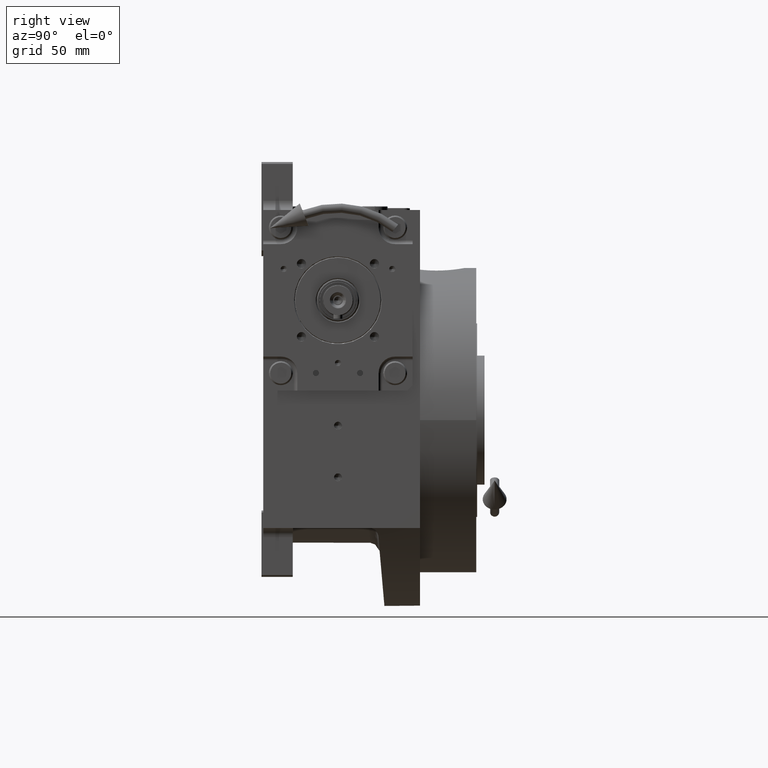
[diagram: clean part render]
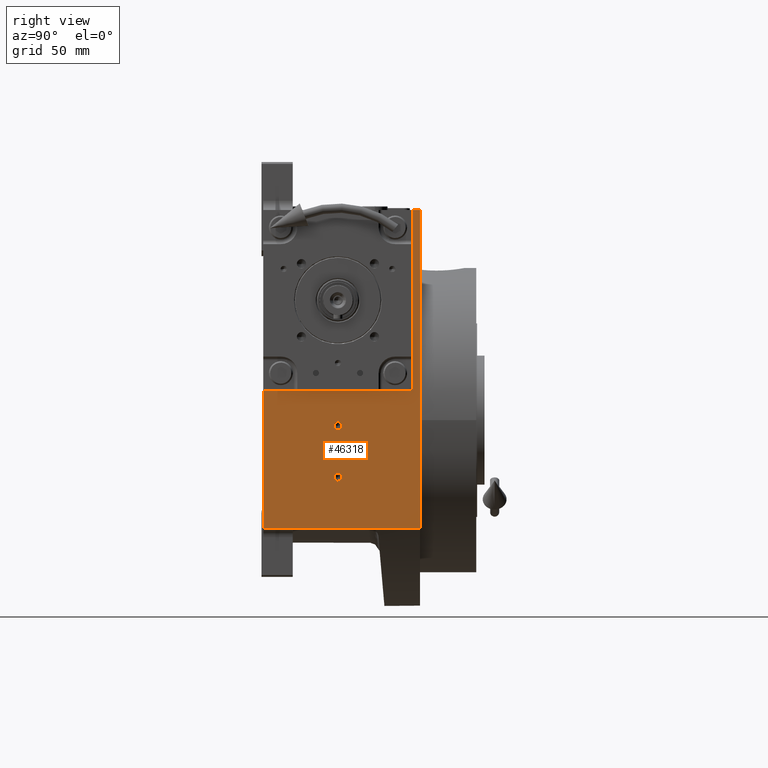
[diagram: same view with one face highlighted and labeled with its STEP entity id]
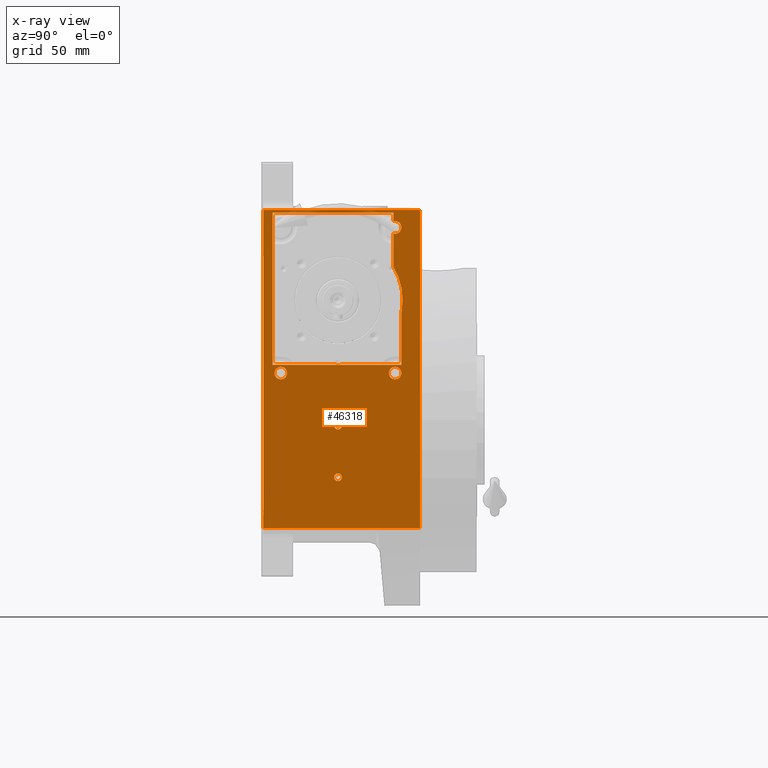
[diagram: x-ray of the same camera — body ghosted, the highlighted face saturated]
A machine part, right view. The second image highlights one B-rep face of the part: STEP entity #46318.
The next image is the same camera in x-ray: the body ghosted, the highlighted face saturated — about 1% of this face is hidden behind the body in this view.
In plain terms, the highlighted planar face has unit normal (1, 0, -0).
Its self-contained STEP definition (entity closure, byte-faithful):
#173 = CARTESIAN_POINT ( 'NONE',  ( 82.49999999999998579, -40.49999999999999289, 29.99999999999998579 ) ) ;
#615 = DIRECTION ( 'NONE',  ( 0.000000000000000000, -1.000000000000000000, 0.000000000000000000 ) ) ;
#699 = CARTESIAN_POINT ( 'NONE',  ( 82.49999999999998579, 34.89175272516990844, 60.68897464567918831 ) ) ;
#1082 = VERTEX_POINT ( 'NONE', #22754 ) ;
#1277 = DIRECTION ( 'NONE',  ( 0.000000000000000000, 1.000000000000000000, 0.000000000000000000 ) ) ;
#1816 = CIRCLE ( 'NONE', #15249, 2.100000000000000089 ) ;
#1893 = DIRECTION ( 'NONE',  ( 1.000000000000000000, 0.000000000000000000, 0.000000000000000000 ) ) ;
#2348 = CARTESIAN_POINT ( 'NONE',  ( 82.49999999999998579, -1.693757624165966202, 29.93853691575077747 ) ) ;
#2807 = VERTEX_POINT ( 'NONE', #47580 ) ;
#2872 = EDGE_CURVE ( 'NONE', #32560, #29061, #53044, .T. ) ;
#3232 = CARTESIAN_POINT ( 'NONE',  ( 82.50000000000001421, 30.82805572436245711, 81.84190272524516274 ) ) ;
#3255 = CARTESIAN_POINT ( 'NONE',  ( 82.50000000000000000, 2.536110083989804753, 29.99974484571772138 ) ) ;
#3318 = CARTESIAN_POINT ( 'NONE',  ( 82.50000000000000000, 0.000000000000000000, -31.00000000000000000 ) ) ;
#3762 = VECTOR ( 'NONE', #38104, 1000.000000000000000 ) ;
#4372 = LINE ( 'NONE', #173, #62797 ) ;
#4382 = AXIS2_PLACEMENT_3D ( 'NONE', #28216, #43418, #38249 ) ;
#4471 = AXIS2_PLACEMENT_3D ( 'NONE', #34215, #29995, #9939 ) ;
#4578 = CARTESIAN_POINT ( 'NONE',  ( 82.50000000000000000, 30.00000000000593303, 113.9999999997145892 ) ) ;
#4647 = CARTESIAN_POINT ( 'NONE',  ( 82.50000000000000000, -40.50000000000000000, 114.0000000000000000 ) ) ;
#4983 = DIRECTION ( 'NONE',  ( 0.000000000000000000, 1.000000000000000000, 0.000000000000000000 ) ) ;
#5145 = CARTESIAN_POINT ( 'NONE',  ( 82.50000000000000000, -31.00000000000000000, 25.50000000000000000 ) ) ;
#5308 = DIRECTION ( 'NONE',  ( 1.000000000000000000, 0.000000000000000000, 0.000000000000000000 ) ) ;
#5886 = AXIS2_PLACEMENT_3D ( 'NONE', #46210, #1893, #56190 ) ;
#6140 = CARTESIAN_POINT ( 'NONE',  ( 82.50000000000000000, 2.220446049250315053E-16, -31.00000000000000000 ) ) ;
#6272 = ORIENTED_EDGE ( 'NONE', *, *, #17821, .F. ) ;
#6343 = VERTEX_POINT ( 'NONE', #17771 ) ;
#6751 = CARTESIAN_POINT ( 'NONE',  ( 82.50000000000000000, -35.50000000000001421, 114.0000000000000000 ) ) ;
#6774 = EDGE_LOOP ( 'NONE', ( #26837, #43903, #29459, #21782, #14669, #43031, #28745, #9667, #26773, #7821, #60454, #14006, #26745 ) ) ;
#6844 = VERTEX_POINT ( 'NONE', #10814 ) ;
#6894 = CARTESIAN_POINT ( 'NONE',  ( 82.50000000000000000, -2.536110689832524745, 29.99973653616786606 ) ) ;
#7238 = ORIENTED_EDGE ( 'NONE', *, *, #16434, .F. ) ;
#7327 = EDGE_CURVE ( 'NONE', #11759, #6844, #22421, .T. ) ;
#7445 = CARTESIAN_POINT ( 'NONE',  ( 82.49999999999998579, 34.64993789476057628, 70.56380189656638890 ) ) ;
#7821 = ORIENTED_EDGE ( 'NONE', *, *, #19068, .T. ) ;
#8585 = EDGE_LOOP ( 'NONE', ( #49269, #18398 ) ) ;
#8593 = EDGE_CURVE ( 'NONE', #38062, #60233, #21510, .T. ) ;
#8710 = CARTESIAN_POINT ( 'NONE',  ( 82.50000000000000000, 32.51283170918762977, 78.22893766805258053 ) ) ;
#8735 = CARTESIAN_POINT ( 'NONE',  ( 82.50000000000000000, 34.49999999999999289, 114.0000000000000000 ) ) ;
#9339 = VERTEX_POINT ( 'NONE', #38024 ) ;
#9667 = ORIENTED_EDGE ( 'NONE', *, *, #28842, .T. ) ;
#9939 = DIRECTION ( 'NONE',  ( -1.647635329298784785E-16, 0.000000000000000000, -1.000000000000000000 ) ) ;
#10139 = AXIS2_PLACEMENT_3D ( 'NONE', #25194, #25862, #615 ) ;
#10274 = FACE_BOUND ( 'NONE', #6774, .T. ) ;
#10437 = VERTEX_POINT ( 'NONE', #60699 ) ;
#10440 = VERTEX_POINT ( 'NONE', #26754 ) ;
#10814 = CARTESIAN_POINT ( 'NONE',  ( 82.50000000000000000, 27.59999999999999787, 25.50000000000000000 ) ) ;
#10944 = CIRCLE ( 'NONE', #43044, 2.100000000000000089 ) ;
#11759 = VERTEX_POINT ( 'NONE', #13286 ) ;
#12309 = CARTESIAN_POINT ( 'NONE',  ( 82.50001592702780329, 35.09186693526755363, 65.00000042374568920 ) ) ;
#12361 = EDGE_CURVE ( 'NONE', #30007, #25662, #33553, .T. ) ;
#12681 = EDGE_CURVE ( 'NONE', #10440, #60532, #37380, .T. ) ;
#13178 = CARTESIAN_POINT ( 'NONE',  ( 82.50000000000000000, 0.000000000000000000, -3.000000000000000000 ) ) ;
#13272 = CARTESIAN_POINT ( 'NONE',  ( 82.49999999999998579, 34.44127179831260577, 71.73571205950983654 ) ) ;
#13286 = CARTESIAN_POINT ( 'NONE',  ( 82.50000000000000000, 34.39999999999999858, 25.50000000000000000 ) ) ;
#13300 = DIRECTION ( 'NONE',  ( -1.647635329298784785E-16, 0.000000000000000000, -1.000000000000000000 ) ) ;
#13638 = CARTESIAN_POINT ( 'NONE',  ( 82.50000000000000000, -40.50000000000000000, 112.4999999999999005 ) ) ;
#13687 = VERTEX_POINT ( 'NONE', #15464 ) ;
#13836 = EDGE_LOOP ( 'NONE', ( #52426, #7238, #25909, #38735, #17381 ) ) ;
#14006 = ORIENTED_EDGE ( 'NONE', *, *, #18243, .T. ) ;
#14343 = CARTESIAN_POINT ( 'NONE',  ( 82.50000000000000000, 29.99999999998061995, 107.7496153618484129 ) ) ;
#14490 = FACE_OUTER_BOUND ( 'NONE', #13836, .T. ) ;
#14669 = ORIENTED_EDGE ( 'NONE', *, *, #40209, .T. ) ;
#15115 = DIRECTION ( 'NONE',  ( 0.000000000000000000, 1.000000000000000000, 4.081702296416015997E-15 ) ) ;
#15249 = AXIS2_PLACEMENT_3D ( 'NONE', #58696, #5308, #53819 ) ;
#15278 = CARTESIAN_POINT ( 'NONE',  ( 82.50000000000000000, 2.536110083989804753, 29.99974484571772138 ) ) ;
#15464 = CARTESIAN_POINT ( 'NONE',  ( 82.49999999999998579, 30.00000000960658042, 83.20547276137477866 ) ) ;
#15881 = EDGE_CURVE ( 'NONE', #47292, #60532, #38082, .T. ) ;
#16434 = EDGE_CURVE ( 'NONE', #30007, #47292, #33456, .T. ) ;
#17381 = ORIENTED_EDGE ( 'NONE', *, *, #12681, .T. ) ;
#17513 = AXIS2_PLACEMENT_3D ( 'NONE', #60811, #41716, #37504 ) ;
#17771 = CARTESIAN_POINT ( 'NONE',  ( 82.50000000000000000, -2.536110689832524745, 29.99973653616786606 ) ) ;
#17821 = EDGE_CURVE ( 'NONE', #31398, #22965, #1816, .T. ) ;
#18243 = EDGE_CURVE ( 'NONE', #2807, #31524, #18549, .T. ) ;
#18303 = VECTOR ( 'NONE', #58586, 1000.000000000000000 ) ;
#18398 = ORIENTED_EDGE ( 'NONE', *, *, #45227, .F. ) ;
#18450 = EDGE_CURVE ( 'NONE', #28758, #1082, #31462, .T. ) ;
#18530 = DIRECTION ( 'NONE',  ( 0.000000000000000000, -1.000000000000000000, -9.912705577010326782E-17 ) ) ;
#18549 = LINE ( 'NONE', #4578, #49321 ) ;
#18889 = EDGE_CURVE ( 'NONE', #31528, #9339, #53556, .T. ) ;
#19068 = EDGE_CURVE ( 'NONE', #37723, #21765, #32610, .T. ) ;
#19128 = EDGE_CURVE ( 'NONE', #60233, #31524, #32895, .T. ) ;
#19683 = AXIS2_PLACEMENT_3D ( 'NONE', #3318, #62488, #47337 ) ;
#20084 = EDGE_CURVE ( 'NONE', #54500, #10437, #54653, .T. ) ;
#20918 = VECTOR ( 'NONE', #22891, 1000.000000000000000 ) ;
#21510 = CIRCLE ( 'NONE', #10139, 3.400000000000000355 ) ;
#21693 = LINE ( 'NONE', #31365, #31209 ) ;
#21765 = VERTEX_POINT ( 'NONE', #61679 ) ;
#21782 = ORIENTED_EDGE ( 'NONE', *, *, #18450, .T. ) ;
#21895 = EDGE_CURVE ( 'NONE', #22965, #31398, #10944, .T. ) ;
#22109 = CIRCLE ( 'NONE', #28285, 3.400000000000000355 ) ;
#22119 = ORIENTED_EDGE ( 'NONE', *, *, #37114, .F. ) ;
#22421 = CIRCLE ( 'NONE', #5886, 3.400000000000000355 ) ;
#22754 = CARTESIAN_POINT ( 'NONE',  ( 82.50000000000000000, 34.49999998686116243, 58.58312853369196205 ) ) ;
#22879 = EDGE_CURVE ( 'NONE', #6343, #37723, #62804, .T. ) ;
#22891 = DIRECTION ( 'NONE',  ( -1.647635329298784785E-16, 0.000000000000000000, -1.000000000000000000 ) ) ;
#22965 = VERTEX_POINT ( 'NONE', #54672 ) ;
#23186 = EDGE_CURVE ( 'NONE', #13687, #28758, #43431, .T. ) ;
#23984 = LINE ( 'NONE', #13638, #18303 ) ;
#24311 = DIRECTION ( 'NONE',  ( -1.647635329298784785E-16, -4.048429820936533247E-12, -1.000000000000000000 ) ) ;
#25194 = CARTESIAN_POINT ( 'NONE',  ( 82.50000000000000000, 31.00000000000000000, 104.5000000000000000 ) ) ;
#25558 = VECTOR ( 'NONE', #18530, 1000.000000000000000 ) ;
#25646 = CARTESIAN_POINT ( 'NONE',  ( 82.50000000000000000, -40.50000000000000000, -58.50000000000000000 ) ) ;
#25662 = VERTEX_POINT ( 'NONE', #25646 ) ;
#25694 = CARTESIAN_POINT ( 'NONE',  ( 82.50001592702780329, 35.09186693526755363, 65.00000042374568920 ) ) ;
#25862 = DIRECTION ( 'NONE',  ( 1.000000000000000000, 0.000000000000000000, 0.000000000000000000 ) ) ;
#25874 = DIRECTION ( 'NONE',  ( 1.000000000000000000, 0.000000000000000000, 0.000000000000000000 ) ) ;
#25909 = ORIENTED_EDGE ( 'NONE', *, *, #12361, .T. ) ;
#26727 = DIRECTION ( 'NONE',  ( -1.647635329298784785E-16, -4.048429820936533247E-12, -1.000000000000000000 ) ) ;
#26745 = ORIENTED_EDGE ( 'NONE', *, *, #19128, .F. ) ;
#26754 = CARTESIAN_POINT ( 'NONE',  ( 82.50000025238179546, 16.91834884610074852, -58.49999999999619860 ) ) ;
#26773 = ORIENTED_EDGE ( 'NONE', *, *, #22879, .T. ) ;
#26837 = ORIENTED_EDGE ( 'NONE', *, *, #8593, .F. ) ;
#27472 = VECTOR ( 'NONE', #26727, 1000.000000000000000 ) ;
#27521 = CARTESIAN_POINT ( 'NONE',  ( 82.50000000000001421, 2.414562605747844383E-09, 29.90816376169637891 ) ) ;
#27645 = EDGE_LOOP ( 'NONE', ( #63902, #49207 ) ) ;
#27824 = CARTESIAN_POINT ( 'NONE',  ( 82.49999999999997158, 35.08975786824625231, 66.61097725807486825 ) ) ;
#28185 = VECTOR ( 'NONE', #4983, 1000.000000000000000 ) ;
#28216 = CARTESIAN_POINT ( 'NONE',  ( 82.50000000000000000, 31.00000000000000000, 25.50000000000000000 ) ) ;
#28285 = AXIS2_PLACEMENT_3D ( 'NONE', #5145, #40075, #55235 ) ;
#28436 = CARTESIAN_POINT ( 'NONE',  ( 82.50000000000001421, 32.80572029892041996, 77.48516808457488025 ) ) ;
#28505 = CARTESIAN_POINT ( 'NONE',  ( 82.49999999999998579, 34.49999999999999289, 30.00000000000000000 ) ) ;
#28745 = ORIENTED_EDGE ( 'NONE', *, *, #2872, .T. ) ;
#28758 = VERTEX_POINT ( 'NONE', #25694 ) ;
#28762 = B_SPLINE_CURVE_WITH_KNOTS ( 'NONE', 3,
 ( #46678, #52131, #2348, #6894 ),
 .UNSPECIFIED., .F., .F.,
 ( 4, 4 ),
 ( 0.5000001611269361268, 0.5230119329669968842 ),
 .UNSPECIFIED. ) ;
#28842 = EDGE_CURVE ( 'NONE', #29061, #6343, #28762, .T. ) ;
#29061 = VERTEX_POINT ( 'NONE', #54294 ) ;
#29179 = CIRCLE ( 'NONE', #4382, 3.400000000000000355 ) ;
#29459 = ORIENTED_EDGE ( 'NONE', *, *, #23186, .T. ) ;
#29995 = DIRECTION ( 'NONE',  ( 1.000000000000000000, 0.000000000000000000, -1.647635329298784785E-16 ) ) ;
#30007 = VERTEX_POINT ( 'NONE', #59978 ) ;
#31209 = VECTOR ( 'NONE', #41394, 1000.000000000000000 ) ;
#31365 = CARTESIAN_POINT ( 'NONE',  ( 82.50000000000000000, -40.50000000000000000, -58.50000000000000000 ) ) ;
#31398 = VERTEX_POINT ( 'NONE', #33111 ) ;
#31462 = B_SPLINE_CURVE_WITH_KNOTS ( 'NONE', 3,
 ( #41119, #39821, #699, #34990 ),
 .UNSPECIFIED., .F., .F.,
 ( 4, 4 ),
 ( 0.000000000000000000, 0.05853918765828202558 ),
 .UNSPECIFIED. ) ;
#31524 = VERTEX_POINT ( 'NONE', #14343 ) ;
#31528 = VERTEX_POINT ( 'NONE', #53448 ) ;
#31559 = CARTESIAN_POINT ( 'NONE',  ( 82.49999999999998579, -35.50000000000001421, 29.99999999999999289 ) ) ;
#32560 = VERTEX_POINT ( 'NONE', #15278 ) ;
#32610 = LINE ( 'NONE', #6751, #60772 ) ;
#32662 = CARTESIAN_POINT ( 'NONE',  ( 82.49999999999998579, 30.00000000960658042, 83.20547276137477866 ) ) ;
#32895 = CIRCLE ( 'NONE', #38058, 3.400000000000000355 ) ;
#33111 = CARTESIAN_POINT ( 'NONE',  ( 82.50000000000000000, 2.100000000000000089, -3.000000000000000000 ) ) ;
#33456 = LINE ( 'NONE', #4647, #28185 ) ;
#33525 = DIRECTION ( 'NONE',  ( 0.000000000000000000, -1.000000000000000000, -8.260587980841937794E-16 ) ) ;
#33553 = LINE ( 'NONE', #38708, #3762 ) ;
#34215 = CARTESIAN_POINT ( 'NONE',  ( 82.50000000000000000, -40.50000000000000000, 114.0000000000000000 ) ) ;
#34520 = DIRECTION ( 'NONE',  ( 1.000000000000000000, 0.000000000000000000, 0.000000000000000000 ) ) ;
#34990 = CARTESIAN_POINT ( 'NONE',  ( 82.50000000000000000, 34.49999998686116243, 58.58312853369196205 ) ) ;
#35496 = EDGE_CURVE ( 'NONE', #25662, #10440, #21693, .T. ) ;
#36590 = ORIENTED_EDGE ( 'NONE', *, *, #20084, .F. ) ;
#36592 = CARTESIAN_POINT ( 'NONE',  ( 82.50000000000000000, -34.39999999999999858, 25.50000000000000000 ) ) ;
#36869 = CARTESIAN_POINT ( 'NONE',  ( 82.50000000000001421, 33.33865609199173718, 75.98322085332500819 ) ) ;
#37114 = EDGE_CURVE ( 'NONE', #10437, #54500, #22109, .T. ) ;
#37380 = LINE ( 'NONE', #51614, #61654 ) ;
#37504 = DIRECTION ( 'NONE',  ( 0.000000000000000000, -1.000000000000000000, 2.040851148208007998E-15 ) ) ;
#37723 = VERTEX_POINT ( 'NONE', #31559 ) ;
#38024 = CARTESIAN_POINT ( 'NONE',  ( 82.50000000000000000, -2.100000000000000089, -31.00000000000000000 ) ) ;
#38058 = AXIS2_PLACEMENT_3D ( 'NONE', #54230, #34520, #15115 ) ;
#38062 = VERTEX_POINT ( 'NONE', #53818 ) ;
#38082 = LINE ( 'NONE', #43255, #20918 ) ;
#38104 = DIRECTION ( 'NONE',  ( -1.647635329298784785E-16, 0.000000000000000000, -1.000000000000000000 ) ) ;
#38249 = DIRECTION ( 'NONE',  ( 0.000000000000000000, -1.000000000000000000, 0.000000000000000000 ) ) ;
#38708 = CARTESIAN_POINT ( 'NONE',  ( 82.50000000000000000, -40.50000000000000000, 114.0000000000000000 ) ) ;
#38735 = ORIENTED_EDGE ( 'NONE', *, *, #35496, .T. ) ;
#39367 = FACE_BOUND ( 'NONE', #45804, .T. ) ;
#39821 = CARTESIAN_POINT ( 'NONE',  ( 82.49999999999998579, 35.08908208338716861, 62.82792700497097371 ) ) ;
#40017 = FACE_BOUND ( 'NONE', #27645, .T. ) ;
#40075 = DIRECTION ( 'NONE',  ( 1.000000000000000000, 0.000000000000000000, 0.000000000000000000 ) ) ;
#40209 = EDGE_CURVE ( 'NONE', #1082, #48643, #43359, .T. ) ;
#40318 = CARTESIAN_POINT ( 'NONE',  ( 82.50000000000000000, 30.00000000000593303, 113.9999999997145892 ) ) ;
#40883 = CARTESIAN_POINT ( 'NONE',  ( 82.50000000000000000, 34.39999999999999858, 104.5000000000000000 ) ) ;
#41119 = CARTESIAN_POINT ( 'NONE',  ( 82.50001592702780329, 35.09186693526755363, 65.00000042374568920 ) ) ;
#41149 = AXIS2_PLACEMENT_3D ( 'NONE', #6140, #25874, #1277 ) ;
#41394 = DIRECTION ( 'NONE',  ( 0.000000000000000000, 1.000000000000000000, 0.000000000000000000 ) ) ;
#41716 = DIRECTION ( 'NONE',  ( 1.000000000000000000, 0.000000000000000000, 0.000000000000000000 ) ) ;
#43031 = ORIENTED_EDGE ( 'NONE', *, *, #61425, .T. ) ;
#43044 = AXIS2_PLACEMENT_3D ( 'NONE', #13178, #58752, #33525 ) ;
#43255 = CARTESIAN_POINT ( 'NONE',  ( 82.50000000000000000, 44.50000000000000000, 114.0000000000000000 ) ) ;
#43359 = LINE ( 'NONE', #8735, #49301 ) ;
#43418 = DIRECTION ( 'NONE',  ( 1.000000000000000000, 0.000000000000000000, 0.000000000000000000 ) ) ;
#43431 = B_SPLINE_CURVE_WITH_KNOTS ( 'NONE', 3,
 ( #32662, #3232, #62723, #8710, #28436, #36869, #57555, #52379, #13272, #56598, #7445, #51739, #27824, #12309 ),
 .UNSPECIFIED., .F., .F.,
 ( 4, 2, 2, 1, 2, 2, 1, 4 ),
 ( 0.8263553266775865991, 0.8697664950081898105, 0.8914720791734912497, 0.9131776633387927999, 0.9348832475040943502, 0.9457360395867453473, 0.9565888316693962334, 1.000000000000000000 ),
 .UNSPECIFIED. ) ;
#43903 = ORIENTED_EDGE ( 'NONE', *, *, #51001, .T. ) ;
#44951 = CARTESIAN_POINT ( 'NONE',  ( 82.50000000000000000, 44.50000000000000000, 114.0000000000000000 ) ) ;
#45227 = EDGE_CURVE ( 'NONE', #9339, #31528, #48588, .T. ) ;
#45445 = EDGE_CURVE ( 'NONE', #6844, #11759, #29179, .T. ) ;
#45804 = EDGE_LOOP ( 'NONE', ( #6272, #59432 ) ) ;
#46210 = CARTESIAN_POINT ( 'NONE',  ( 82.50000000000000000, 31.00000000000000000, 25.50000000000000000 ) ) ;
#46318 = ADVANCED_FACE ( 'NONE', ( #59755, #39367, #49074, #40017, #14490, #10274 ), #53915, .T. ) ;
#46678 = CARTESIAN_POINT ( 'NONE',  ( 82.50000000000001421, 2.414562605747844383E-09, 29.90816376169637891 ) ) ;
#46794 = EDGE_LOOP ( 'NONE', ( #22119, #36590 ) ) ;
#47292 = VERTEX_POINT ( 'NONE', #44951 ) ;
#47337 = DIRECTION ( 'NONE',  ( 0.000000000000000000, -1.000000000000000000, 0.000000000000000000 ) ) ;
#47580 = CARTESIAN_POINT ( 'NONE',  ( 82.50000000000000000, 29.99999999999985079, 112.4999999999999005 ) ) ;
#48588 = CIRCLE ( 'NONE', #19683, 2.100000000000000089 ) ;
#48643 = VERTEX_POINT ( 'NONE', #50199 ) ;
#49011 = DIRECTION ( 'NONE',  ( -1.633252391761930827E-32, -1.000000000000000000, -9.912705577010326782E-17 ) ) ;
#49074 = FACE_BOUND ( 'NONE', #46794, .T. ) ;
#49207 = ORIENTED_EDGE ( 'NONE', *, *, #45445, .F. ) ;
#49269 = ORIENTED_EDGE ( 'NONE', *, *, #18889, .F. ) ;
#49301 = VECTOR ( 'NONE', #13300, 1000.000000000000000 ) ;
#49321 = VECTOR ( 'NONE', #24311, 1000.000000000000000 ) ;
#50199 = CARTESIAN_POINT ( 'NONE',  ( 82.49999999999998579, 34.49999999999999289, 30.00000000000000000 ) ) ;
#50454 = EDGE_CURVE ( 'NONE', #21765, #2807, #23984, .T. ) ;
#51001 = EDGE_CURVE ( 'NONE', #38062, #13687, #56115, .T. ) ;
#51614 = CARTESIAN_POINT ( 'NONE',  ( 82.50000000000000000, 16.91835670641390266, -58.49999999999130296 ) ) ;
#51739 = CARTESIAN_POINT ( 'NONE',  ( 82.49999999999997158, 34.95339362933337668, 68.60173905830357910 ) ) ;
#52131 = CARTESIAN_POINT ( 'NONE',  ( 82.49999999999998579, -0.8483810300191864107, 29.90807573436788758 ) ) ;
#52379 = CARTESIAN_POINT ( 'NONE',  ( 82.50000000000001421, 34.19712326406279601, 72.91238130060928313 ) ) ;
#52426 = ORIENTED_EDGE ( 'NONE', *, *, #15881, .F. ) ;
#53044 = B_SPLINE_CURVE_WITH_KNOTS ( 'NONE', 3,
 ( #3255, #63065, #62112, #27521 ),
 .UNSPECIFIED., .F., .F.,
 ( 4, 4 ),
 ( 0.4769929901098248770, 0.5000001611269361268 ),
 .UNSPECIFIED. ) ;
#53448 = CARTESIAN_POINT ( 'NONE',  ( 82.50000000000000000, 2.100000000000000089, -31.00000000000000000 ) ) ;
#53556 = CIRCLE ( 'NONE', #41149, 2.100000000000000089 ) ;
#53818 = CARTESIAN_POINT ( 'NONE',  ( 82.50000000000000000, 29.99999999995431565, 101.2503846381596730 ) ) ;
#53819 = DIRECTION ( 'NONE',  ( 0.000000000000000000, 1.000000000000000000, 8.260587980841937794E-16 ) ) ;
#53915 = PLANE ( 'NONE',  #4471 ) ;
#54230 = CARTESIAN_POINT ( 'NONE',  ( 82.50000000000000000, 31.00000000000000000, 104.5000000000000000 ) ) ;
#54294 = CARTESIAN_POINT ( 'NONE',  ( 82.50000000000001421, 2.414562605747844383E-09, 29.90816376169637891 ) ) ;
#54500 = VERTEX_POINT ( 'NONE', #36592 ) ;
#54653 = CIRCLE ( 'NONE', #17513, 3.400000000000000355 ) ;
#54672 = CARTESIAN_POINT ( 'NONE',  ( 82.50000000000000000, -2.100000000000000089, -3.000000000000000000 ) ) ;
#55235 = DIRECTION ( 'NONE',  ( 0.000000000000000000, 1.000000000000000000, -2.040851148208007998E-15 ) ) ;
#56115 = LINE ( 'NONE', #40318, #27472 ) ;
#56190 = DIRECTION ( 'NONE',  ( 0.000000000000000000, 1.000000000000000000, 0.000000000000000000 ) ) ;
#56212 = DIRECTION ( 'NONE',  ( 1.647635329298784785E-16, 0.000000000000000000, 1.000000000000000000 ) ) ;
#56598 = CARTESIAN_POINT ( 'NONE',  ( 82.49999999999997158, 34.51518828127864680, 71.34633111491422142 ) ) ;
#57093 = DIRECTION ( 'NONE',  ( 0.000000000000000000, 1.000000000000000000, -3.142895179957984790E-13 ) ) ;
#57555 = CARTESIAN_POINT ( 'NONE',  ( 82.50000000000000000, 33.81974078154515695, 74.46453734952115155 ) ) ;
#58586 = DIRECTION ( 'NONE',  ( 0.000000000000000000, 1.000000000000000000, 0.000000000000000000 ) ) ;
#58696 = CARTESIAN_POINT ( 'NONE',  ( 82.50000000000000000, 0.000000000000000000, -3.000000000000000000 ) ) ;
#58752 = DIRECTION ( 'NONE',  ( 1.000000000000000000, 0.000000000000000000, 0.000000000000000000 ) ) ;
#59432 = ORIENTED_EDGE ( 'NONE', *, *, #21895, .F. ) ;
#59755 = FACE_BOUND ( 'NONE', #8585, .T. ) ;
#59978 = CARTESIAN_POINT ( 'NONE',  ( 82.50000000000000000, -40.50000000000000000, 114.0000000000000000 ) ) ;
#60233 = VERTEX_POINT ( 'NONE', #40883 ) ;
#60454 = ORIENTED_EDGE ( 'NONE', *, *, #50454, .T. ) ;
#60532 = VERTEX_POINT ( 'NONE', #63788 ) ;
#60699 = CARTESIAN_POINT ( 'NONE',  ( 82.50000000000000000, -27.59999999999999787, 25.50000000000000000 ) ) ;
#60772 = VECTOR ( 'NONE', #56212, 1000.000000000000000 ) ;
#60811 = CARTESIAN_POINT ( 'NONE',  ( 82.50000000000000000, -31.00000000000000000, 25.50000000000000000 ) ) ;
#61425 = EDGE_CURVE ( 'NONE', #48643, #32560, #4372, .T. ) ;
#61654 = VECTOR ( 'NONE', #57093, 1000.000000000000000 ) ;
#61679 = CARTESIAN_POINT ( 'NONE',  ( 82.49999999999998579, -35.50000000000001421, 112.4999999999999005 ) ) ;
#62112 = CARTESIAN_POINT ( 'NONE',  ( 82.49999999999998579, 0.8482114151010448078, 29.90810332843309993 ) ) ;
#62488 = DIRECTION ( 'NONE',  ( 1.000000000000000000, 0.000000000000000000, 0.000000000000000000 ) ) ;
#62723 = CARTESIAN_POINT ( 'NONE',  ( 82.50000000000000000, 31.55973645480924361, 80.42730196816596333 ) ) ;
#62797 = VECTOR ( 'NONE', #49011, 1000.000000000000000 ) ;
#62804 = LINE ( 'NONE', #28505, #25558 ) ;
#63065 = CARTESIAN_POINT ( 'NONE',  ( 82.49999999999998579, 1.693853510454309763, 29.93857005420085216 ) ) ;
#63788 = CARTESIAN_POINT ( 'NONE',  ( 82.50000000000000000, 44.50000000000000000, -58.50000000000000000 ) ) ;
#63902 = ORIENTED_EDGE ( 'NONE', *, *, #7327, .F. ) ;